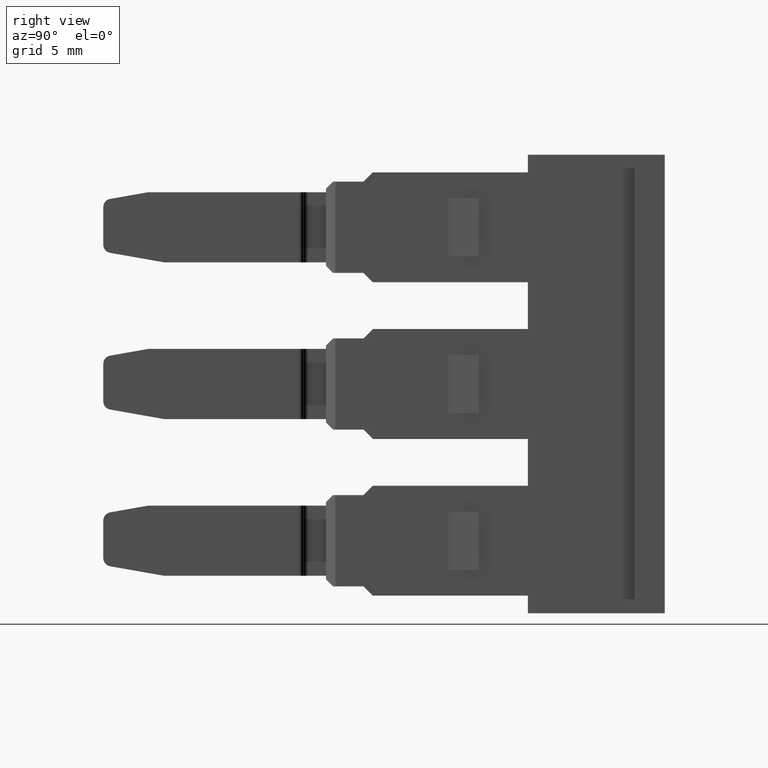
[diagram: clean part render]
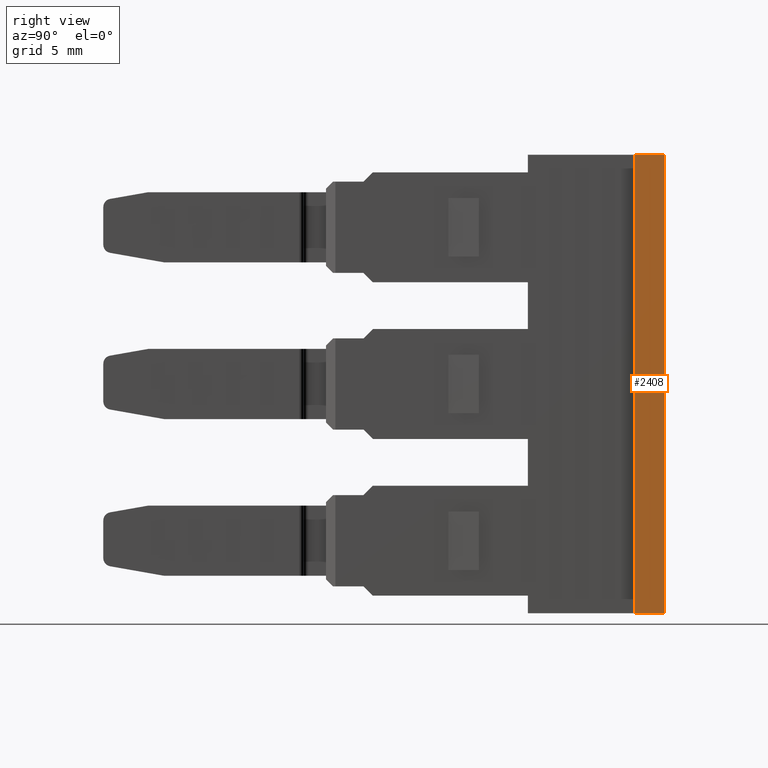
[diagram: same view with one face highlighted and labeled with its STEP entity id]
A machine part, right view. The second image highlights one B-rep face of the part: STEP entity #2408.
In plain terms, the highlighted planar face has unit normal (1, -0, 0).
Its self-contained STEP definition (entity closure, byte-faithful):
#128 = EDGE_LOOP ( 'NONE', ( #336, #292, #319, #378 ) ) ;
#292 = ORIENTED_EDGE ( 'NONE', *, *, #2505, .T. ) ;
#319 = ORIENTED_EDGE ( 'NONE', *, *, #2517, .T. ) ;
#336 = ORIENTED_EDGE ( 'NONE', *, *, #2524, .T. ) ;
#378 = ORIENTED_EDGE ( 'NONE', *, *, #2523, .T. ) ;
#946 = AXIS2_PLACEMENT_3D ( 'NONE', #3305, #3307, #3304 ) ;
#1065 = VECTOR ( 'NONE', #1426, 1000.000000000000000 ) ;
#1090 = VECTOR ( 'NONE', #1419, 1000.000000000000000 ) ;
#1092 = VECTOR ( 'NONE', #1414, 1000.000000000000000 ) ;
#1105 = VECTOR ( 'NONE', #3666, 1000.000000000000200 ) ;
#1397 = CARTESIAN_POINT ( 'NONE',  ( 1394.182440319829500, 1077.957091196377200, 63.60600222243470400 ) ) ;
#1404 = LINE ( 'NONE', #1397, #1065 ) ;
#1412 = CARTESIAN_POINT ( 'NONE',  ( 1394.182427990817400, 1076.657091196431100, 9.800000000002389900 ) ) ;
#1414 = DIRECTION ( 'NONE',  ( -9.483855581185088200E-006, -0.9999999999550282000, -9.381325129731750000E-031 ) ) ;
#1415 = LINE ( 'NONE', #1418, #1090 ) ;
#1418 = CARTESIAN_POINT ( 'NONE',  ( 1394.182427990817400, 1076.657091196431100, -38.31585598421686700 ) ) ;
#1419 = DIRECTION ( 'NONE',  ( -4.994244471989924700E-019, -5.266048632863696100E-014, -1.000000000000000000 ) ) ;
#1426 = DIRECTION ( 'NONE',  ( -5.379506530252374700E-033, -5.672277992797063800E-028, 1.000000000000000000 ) ) ;
#1434 = LINE ( 'NONE', #1412, #1092 ) ;
#2211 = CARTESIAN_POINT ( 'NONE',  ( 1394.182427990817400, 1076.657091196431100, 9.800000000002389900 ) ) ;
#2218 = CARTESIAN_POINT ( 'NONE',  ( 1394.182427990817400, 1076.657091196430700, -9.799999999942414800 ) ) ;
#2223 = CARTESIAN_POINT ( 'NONE',  ( 1394.182440319829500, 1077.957091196374900, 9.800000000002389900 ) ) ;
#2281 = CARTESIAN_POINT ( 'NONE',  ( 1394.182440319829500, 1077.957091196372900, -9.799999999942414800 ) ) ;
#2408 = ADVANCED_FACE ( 'NONE', ( #3337 ), #3303, .T. ) ;
#2505 = EDGE_CURVE ( 'NONE', #3820, #3847, #3668, .T. ) ;
#2517 = EDGE_CURVE ( 'NONE', #3847, #3833, #1404, .T. ) ;
#2523 = EDGE_CURVE ( 'NONE', #3833, #3817, #1434, .T. ) ;
#2524 = EDGE_CURVE ( 'NONE', #3817, #3820, #1415, .T. ) ;
#3303 = PLANE ( 'NONE',  #946 ) ;
#3304 = DIRECTION ( 'NONE',  ( 9.483855581199667300E-006, 0.9999999999550282000, 0.0000000000000000000 ) ) ;
#3305 = CARTESIAN_POINT ( 'NONE',  ( 1394.182440319829500, 1077.957091196375100, -3.099999999942415900 ) ) ;
#3307 = DIRECTION ( 'NONE',  ( 0.9999999999550283100, -9.483855581199669000E-006, 0.0000000000000000000 ) ) ;
#3337 = FACE_OUTER_BOUND ( 'NONE', #128, .T. ) ;
#3631 = CARTESIAN_POINT ( 'NONE',  ( 1394.182438900849800, 1077.807470640190800, -9.799999999942414800 ) ) ;
#3666 = DIRECTION ( 'NONE',  ( 9.483855581199667300E-006, 0.9999999999550282000, -7.505716123672705500E-030 ) ) ;
#3668 = LINE ( 'NONE', #3631, #1105 ) ;
#3817 = VERTEX_POINT ( 'NONE', #2211 ) ;
#3820 = VERTEX_POINT ( 'NONE', #2218 ) ;
#3833 = VERTEX_POINT ( 'NONE', #2223 ) ;
#3847 = VERTEX_POINT ( 'NONE', #2281 ) ;